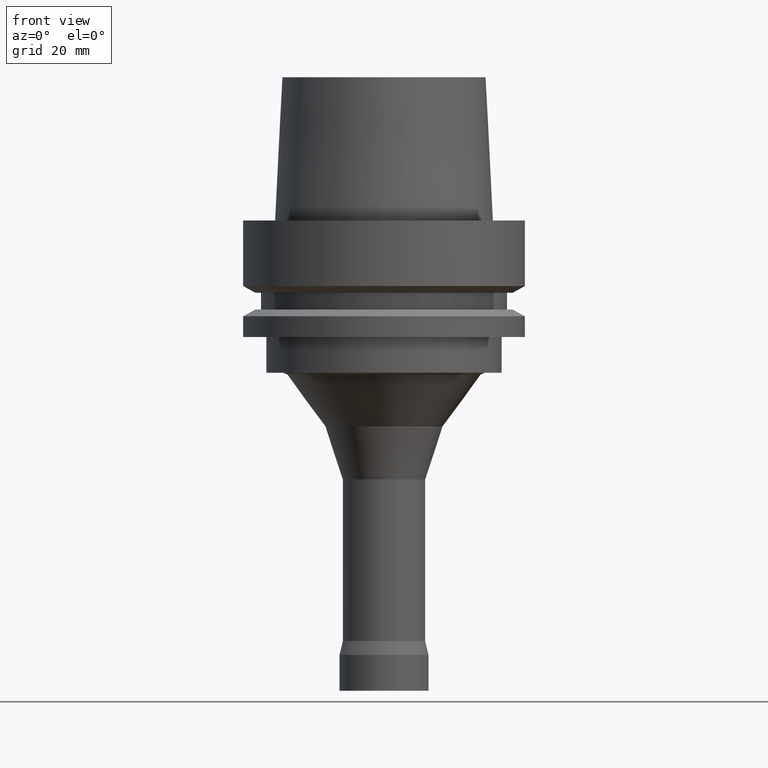
[diagram: clean part render]
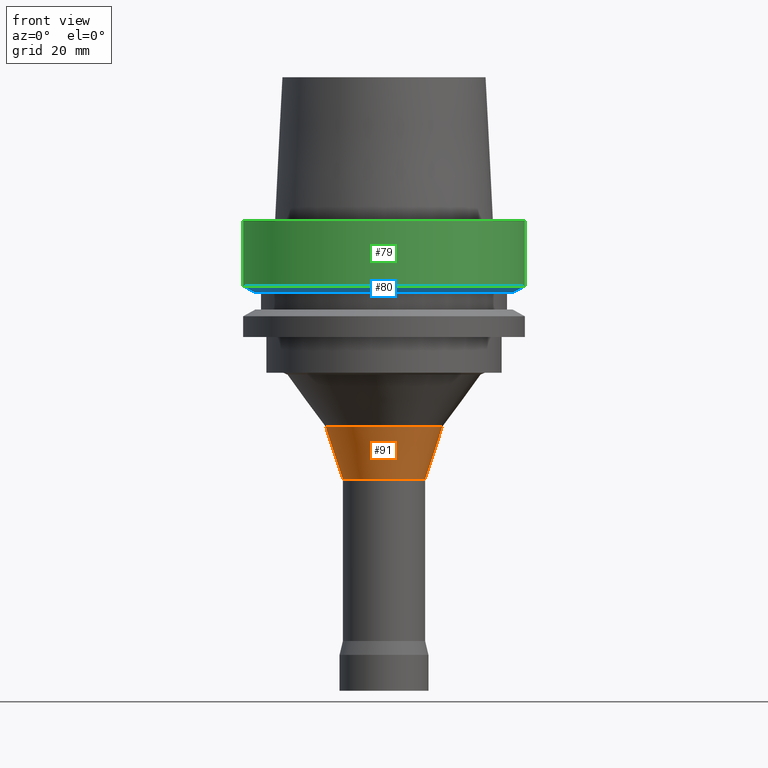
[diagram: same view with three faces highlighted in distinct colors, each labeled with its STEP entity id]
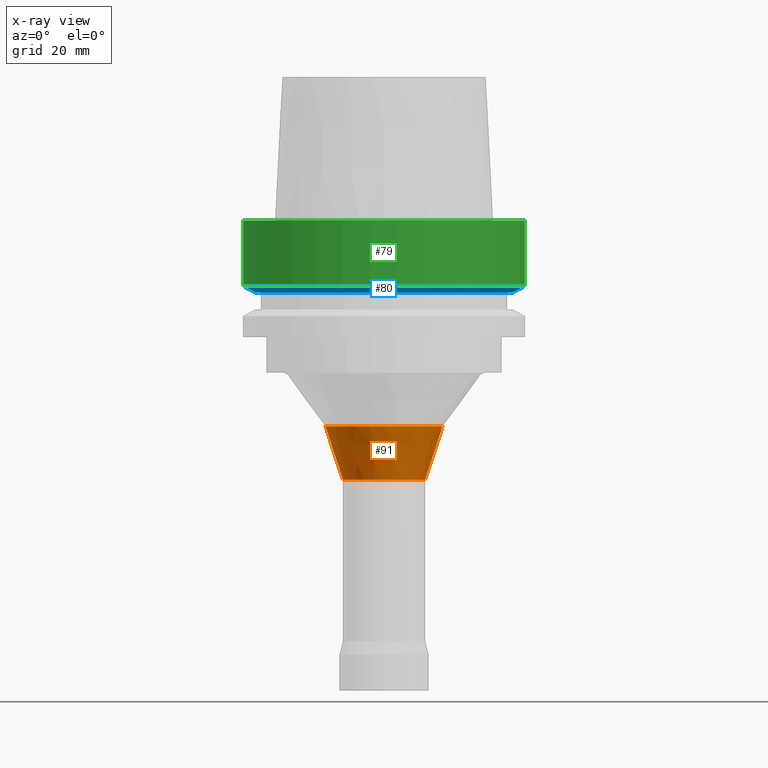
[diagram: x-ray of the same camera — body ghosted, the three highlighted faces saturated]
A machine part, front view with three faces highlighted in distinct colors.
The next image is the same camera in x-ray (body ghosted, the three faces saturated) — at least one of them is partly hidden behind the body in this view.
Their STEP definitions:

[orange] entity #91 — the highlighted conical surface has half-angle 18.23 deg.
#91=ADVANCED_FACE('',(#142,#143),#144,.T.);
#142=FACE_BOUND('',#200,.T.);
#143=FACE_BOUND('',#201,.T.);
#144=CONICAL_SURFACE('',#202,11.20723945,0.318170051453841);
#200=EDGE_LOOP('',(#290));
#201=EDGE_LOOP('',(#291));
#202=AXIS2_PLACEMENT_3D('',#292,#293,#294);
#290=ORIENTED_EDGE('',*,*,#326,.F.);
#291=ORIENTED_EDGE('',*,*,#325,.T.);
#292=CARTESIAN_POINT('',(3.17762998371868E-015,6.35525996743735E-015,-51.89463584));
#293=DIRECTION('',(-6.12323399573677E-017,-1.22464679914735E-016,1.0));
#294=DIRECTION('',(-1.23259516440783E-032,1.0,1.22464679914735E-016));
#325=EDGE_CURVE('',#359,#359,#360,.T.);
#326=EDGE_CURVE('',#361,#361,#362,.T.);
#359=VERTEX_POINT('',#397);
#360=CIRCLE('',#398,13.1644789);
#361=VERTEX_POINT('',#399);
#362=CIRCLE('',#400,9.25);
#397=CARTESIAN_POINT('',(2.8137532153069E-015,13.1644789,-45.95207724));
#398=AXIS2_PLACEMENT_3D('',#450,#451,#452);
#399=CARTESIAN_POINT('',(3.54150675213045E-015,9.25000000000001,-57.83719444));
#400=AXIS2_PLACEMENT_3D('',#453,#454,#455);
#450=CARTESIAN_POINT('',(2.8137532153069E-015,5.62750643061379E-015,-45.95207724));
#451=DIRECTION('',(6.12323399573677E-017,1.22464679914735E-016,-1.0));
#452=DIRECTION('',(-1.23259516440783E-032,1.0,1.22464679914735E-016));
#453=CARTESIAN_POINT('',(3.54150675213045E-015,7.08301350426091E-015,-57.83719444));
#454=DIRECTION('',(6.12323399573677E-017,1.22464679914735E-016,-1.0));
#455=DIRECTION('',(-1.23259516440783E-032,1.0,1.22464679914735E-016));

[blue] entity #80 — the highlighted conical surface has half-angle 60 deg.
#80=ADVANCED_FACE('',(#109,#110),#111,.T.);
#109=FACE_BOUND('',#167,.T.);
#110=FACE_BOUND('',#168,.T.);
#111=CONICAL_SURFACE('',#169,30.19879763,1.04719755326565);
#167=EDGE_LOOP('',(#235));
#168=EDGE_LOOP('',(#236));
#169=AXIS2_PLACEMENT_3D('',#237,#238,#239);
#235=ORIENTED_EDGE('',*,*,#315,.F.);
#236=ORIENTED_EDGE('',*,*,#314,.T.);
#237=CARTESIAN_POINT('',(9.41370714892619E-016,1.88274142978524E-015,-15.373750465));
#238=DIRECTION('',(-6.12323399573677E-017,-1.22464679914735E-016,1.0));
#239=DIRECTION('',(-1.23259516440783E-032,1.0,1.22464679914735E-016));
#314=EDGE_CURVE('',#337,#337,#338,.T.);
#315=EDGE_CURVE('',#339,#339,#340,.T.);
#337=VERTEX_POINT('',#375);
#338=CIRCLE('',#376,31.5);
#339=VERTEX_POINT('',#377);
#340=CIRCLE('',#378,28.89759526);
#375=CARTESIAN_POINT('',(8.95369947972684E-016,31.5,-14.62250093));
#376=AXIS2_PLACEMENT_3D('',#417,#418,#419);
#377=CARTESIAN_POINT('',(9.87371481812553E-016,28.89759526,-16.125));
#378=AXIS2_PLACEMENT_3D('',#420,#421,#422);
#417=CARTESIAN_POINT('',(8.95369947972685E-016,1.79073989594537E-015,-14.62250093));
#418=DIRECTION('',(6.12323399573677E-017,1.22464679914735E-016,-1.0));
#419=DIRECTION('',(-1.23259516440783E-032,1.0,1.22464679914735E-016));
#420=CARTESIAN_POINT('',(9.87371481812554E-016,1.97474296362511E-015,-16.125));
#421=DIRECTION('',(6.12323399573677E-017,1.22464679914735E-016,-1.0));
#422=DIRECTION('',(-1.23259516440783E-032,1.0,1.22464679914735E-016));

[green] entity #79 — the highlighted cylindrical surface (bore or boss wall) has radius 31.5 mm, axis along (-0, -0, 1).
#79=ADVANCED_FACE('',(#106,#107),#108,.T.);
#106=FACE_BOUND('',#164,.T.);
#107=FACE_BOUND('',#165,.T.);
#108=CYLINDRICAL_SURFACE('',#166,31.5);
#164=EDGE_LOOP('',(#230));
#165=EDGE_LOOP('',(#231));
#166=AXIS2_PLACEMENT_3D('',#232,#233,#234);
#230=ORIENTED_EDGE('',*,*,#314,.F.);
#231=ORIENTED_EDGE('',*,*,#313,.T.);
#232=CARTESIAN_POINT('',(4.47684973986342E-016,8.95369947972685E-016,-7.311250465));
#233=DIRECTION('',(-6.12323399573677E-017,-1.22464679914735E-016,1.0));
#234=DIRECTION('',(-1.23259516440783E-032,1.0,1.22464679914735E-016));
#313=EDGE_CURVE('',#335,#335,#336,.T.);
#314=EDGE_CURVE('',#337,#337,#338,.T.);
#335=VERTEX_POINT('',#373);
#336=CIRCLE('',#374,31.5);
#337=VERTEX_POINT('',#375);
#338=CIRCLE('',#376,31.5);
#373=CARTESIAN_POINT('',(-3.88267476788467E-031,31.5,3.85763741731416E-015));
#374=AXIS2_PLACEMENT_3D('',#414,#415,#416);
#375=CARTESIAN_POINT('',(8.95369947972684E-016,31.5,-14.62250093));
#376=AXIS2_PLACEMENT_3D('',#417,#418,#419);
#414=CARTESIAN_POINT('',(0.0,0.0,0.0));
#415=DIRECTION('',(6.12323399573677E-017,1.22464679914735E-016,-1.0));
#416=DIRECTION('',(-1.23259516440783E-032,1.0,1.22464679914735E-016));
#417=CARTESIAN_POINT('',(8.95369947972685E-016,1.79073989594537E-015,-14.62250093));
#418=DIRECTION('',(6.12323399573677E-017,1.22464679914735E-016,-1.0));
#419=DIRECTION('',(-1.23259516440783E-032,1.0,1.22464679914735E-016));